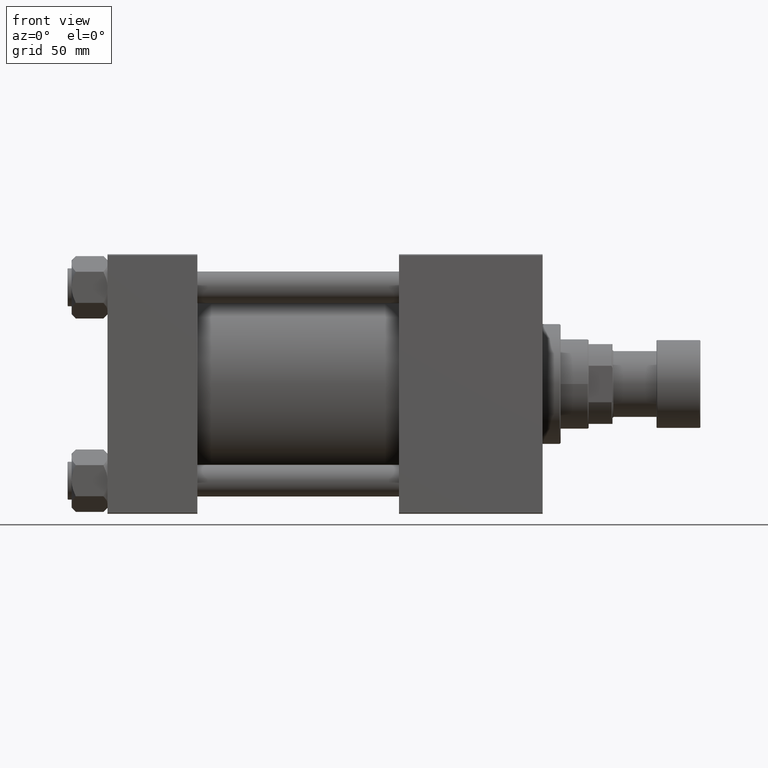
[diagram: clean part render]
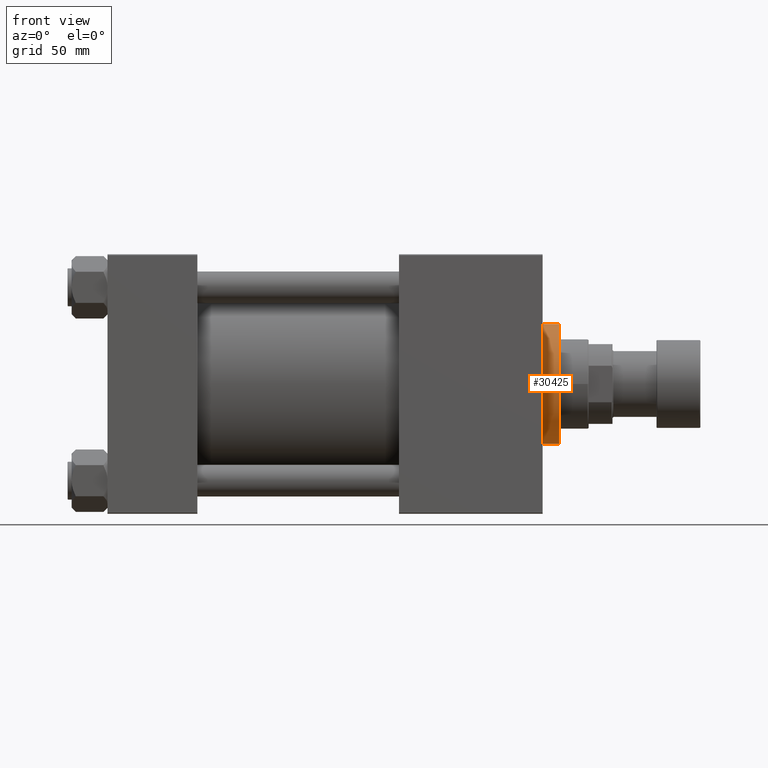
[diagram: same view with one face highlighted and labeled with its STEP entity id]
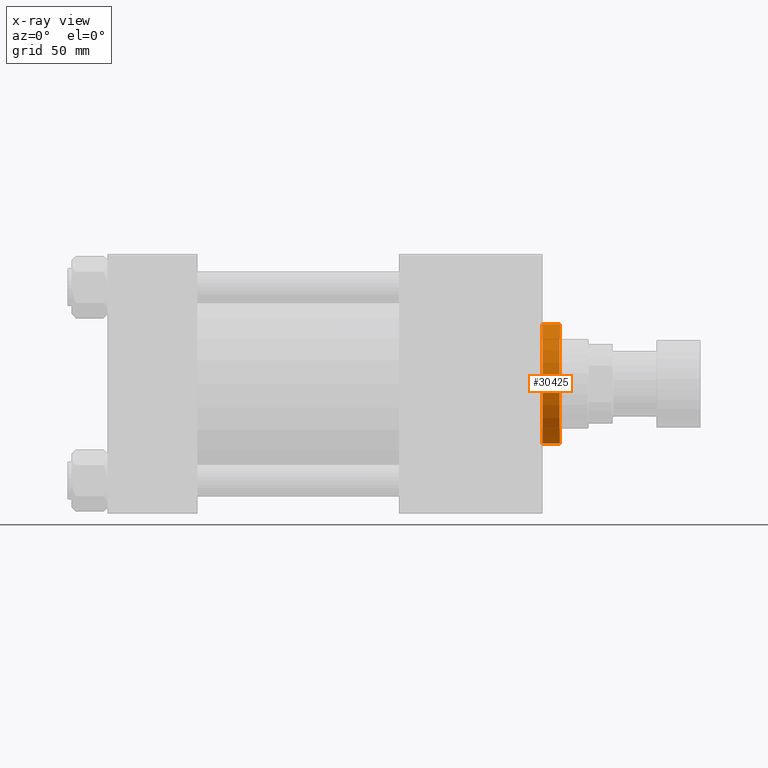
[diagram: x-ray of the same camera — body ghosted, the highlighted face saturated]
A machine part, front view. The second image highlights one B-rep face of the part: STEP entity #30425.
The next image is the same camera in x-ray: the body ghosted, the highlighted face saturated — about 0% of this face is hidden behind the body in this view.
In plain terms, the highlighted cylindrical surface (partial cylindrical patch) has radius 30 mm, axis along (-1, -0, -0).
Its self-contained STEP definition (entity closure, byte-faithful):
#64 = EDGE_CURVE ( 'NONE', #40659, #665, #36655, .T. ) ;
#295 = LINE ( 'NONE', #16120, #28697 ) ;
#665 = VERTEX_POINT ( 'NONE', #27279 ) ;
#1236 = LINE ( 'NONE', #1499, #19294 ) ;
#1499 = CARTESIAN_POINT ( 'NONE',  ( -30.00000000000000000, 0.000000000000000000, 37.69999999999999574 ) ) ;
#1757 = DIRECTION ( 'NONE',  ( 0.000000000000000000, 0.000000000000000000, -1.000000000000000000 ) ) ;
#5224 = CARTESIAN_POINT ( 'NONE',  ( 0.000000000000000000, 0.000000000000000000, 37.69999999999999574 ) ) ;
#5383 = DIRECTION ( 'NONE',  ( 1.000000000000000000, 0.000000000000000000, 0.000000000000000000 ) ) ;
#8234 = DIRECTION ( 'NONE',  ( -0.000000000000000000, -0.000000000000000000, -1.000000000000000000 ) ) ;
#8586 = CYLINDRICAL_SURFACE ( 'NONE', #34102, 30.00000000000000000 ) ;
#12286 = EDGE_CURVE ( 'NONE', #665, #40497, #1236, .T. ) ;
#12486 = FACE_OUTER_BOUND ( 'NONE', #40814, .T. ) ;
#16120 = CARTESIAN_POINT ( 'NONE',  ( 30.00000000000000000, 3.673940397442059178E-15, 37.69999999999999574 ) ) ;
#16628 = DIRECTION ( 'NONE',  ( 0.000000000000000000, 0.000000000000000000, 1.000000000000000000 ) ) ;
#19294 = VECTOR ( 'NONE', #8234, 1000.000000000000000 ) ;
#20267 = CARTESIAN_POINT ( 'NONE',  ( 30.00000000000000000, 3.673940397442059178E-15, 28.69999999999999929 ) ) ;
#21441 = CARTESIAN_POINT ( 'NONE',  ( 0.000000000000000000, 0.000000000000000000, 37.19999999999998863 ) ) ;
#21773 = EDGE_CURVE ( 'NONE', #40659, #33785, #295, .T. ) ;
#22413 = ORIENTED_EDGE ( 'NONE', *, *, #30401, .T. ) ;
#24374 = DIRECTION ( 'NONE',  ( -0.000000000000000000, -0.000000000000000000, -1.000000000000000000 ) ) ;
#27065 = CARTESIAN_POINT ( 'NONE',  ( 30.00000000000000000, 3.673940397442059178E-15, 37.19999999999998863 ) ) ;
#27279 = CARTESIAN_POINT ( 'NONE',  ( -30.00000000000000000, 0.000000000000000000, 37.19999999999998863 ) ) ;
#28697 = VECTOR ( 'NONE', #35527, 1000.000000000000000 ) ;
#29929 = CARTESIAN_POINT ( 'NONE',  ( -30.00000000000000000, 0.000000000000000000, 28.69999999999999929 ) ) ;
#30401 = EDGE_CURVE ( 'NONE', #40497, #33785, #48980, .T. ) ;
#30425 = ADVANCED_FACE ( 'NONE', ( #12486 ), #8586, .T. ) ;
#31777 = ORIENTED_EDGE ( 'NONE', *, *, #12286, .T. ) ;
#33785 = VERTEX_POINT ( 'NONE', #20267 ) ;
#34102 = AXIS2_PLACEMENT_3D ( 'NONE', #5224, #24374, #40196 ) ;
#35527 = DIRECTION ( 'NONE',  ( -0.000000000000000000, -0.000000000000000000, -1.000000000000000000 ) ) ;
#36655 = CIRCLE ( 'NONE', #43281, 30.00000000000000000 ) ;
#39679 = DIRECTION ( 'NONE',  ( 1.000000000000000000, 0.000000000000000000, 0.000000000000000000 ) ) ;
#40196 = DIRECTION ( 'NONE',  ( -1.000000000000000000, 0.000000000000000000, 0.000000000000000000 ) ) ;
#40497 = VERTEX_POINT ( 'NONE', #29929 ) ;
#40659 = VERTEX_POINT ( 'NONE', #27065 ) ;
#40814 = EDGE_LOOP ( 'NONE', ( #43765, #41718, #31777, #22413 ) ) ;
#41718 = ORIENTED_EDGE ( 'NONE', *, *, #64, .T. ) ;
#43281 = AXIS2_PLACEMENT_3D ( 'NONE', #21441, #1757, #5383 ) ;
#43765 = ORIENTED_EDGE ( 'NONE', *, *, #21773, .F. ) ;
#47340 = AXIS2_PLACEMENT_3D ( 'NONE', #48219, #16628, #39679 ) ;
#48219 = CARTESIAN_POINT ( 'NONE',  ( 0.000000000000000000, 0.000000000000000000, 28.69999999999999929 ) ) ;
#48980 = CIRCLE ( 'NONE', #47340, 30.00000000000000000 ) ;